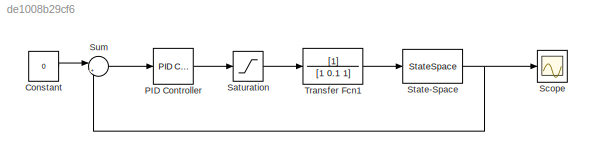
MODEL slx_de1008b29cf6
KIND model
CONFIG AbsTol = auto
CONFIG EnableMultiTasking = off
CONFIG FixedStep = auto
CONFIG MaxStep = auto
CONFIG MinStep = auto
CONFIG RelTol = 1e-3
CONFIG SampleTimeConstraint = Unconstrained
CONFIG SolverName = VariableStepAuto
CONFIG StartTime = 0.0
CONFIG StopTime = 10.0
WORKSPACE source: mxarray member
WORKSPACE s: Simulink.Parameter (value not decoded)
BLOCK [Constant] Constant
  Value = 0
BLOCK [Reference] PID Controller  REF=slpidlib/PID Controller
  LibrarySourceBlock = simulink/Continuous/PID Controller
  SourceBlock = slpidlib/PID Controller
  SourceType = PID 1dof
BLOCK [Saturate] Saturation
  LowerLimit = -255
  UpperLimit = 255
BLOCK [Scope] Scope
  ActiveDisplayYMaximum = 1.2769351301967122E+7
  ActiveDisplayYMinimum = -5.4069535047256993E+6
  Floating = off
  GraphicalSettings = {"AxesScalingProperties":{"AlignXAxis":"Center","AlignYAxis":"Center","AutoScaleXAxisLimits":false,"AxesScaling":"Manual","AxesScalingNumUpdates":10,"ExpandOnly":true,"ScaleAxesLimitsAtStop":false,"XAxisDataRange":100,"YAxisDataRange":80},"DisplayProperties":{"ColorOrder":["auto","auto","auto","auto","auto","auto","auto","auto","auto","auto","auto","auto","auto","auto","auto","auto","auto","auto",...<+2026ch>
  MultipleDisplayCache = [{"MaxYLimMag":1.8350927163755415,"MaxYLimReal":1.2769351301967122E+7,"MinYLimMag":0,"MinYLimReal":-5.4069535047256993E+6,"PlotAsMagnitudePhase":false,"ShowGrid":true,"ShowLegend":false,"Title":"%<SignalLabel>","YLabel":""}]
  NumInputPorts = 1
  ScopeFrameLocation = window
  WasSavedAsWebScope = on
  WindowPosition = [1.000000,49.000000,2194.000000,1163.000000,]
BLOCK [StateSpace] State-Space
  A = [0 1; 5 0]
  B = [0; 1]
  C = [1 0]
  D = [0]
  InitialCondition = [0.01; 0]
BLOCK [Sum] Sum
  Inputs = |+-
BLOCK [TransferFcn] Transfer Fcn1
  Denominator = [1 0.1 1]
LINE Constant:1 -> Sum:1
LINE PID Controller:1 -> Saturation:1
LINE Saturation:1 -> Transfer Fcn1:1
NET State-Space:1 -> Scope:1, Sum:2
LINE Sum:1 -> PID Controller:1
LINE Transfer Fcn1:1 -> State-Space:1
note: NET lines group one-source signal fan-out (src -> all destinations, sorted); 1:1 wires keep LINE
